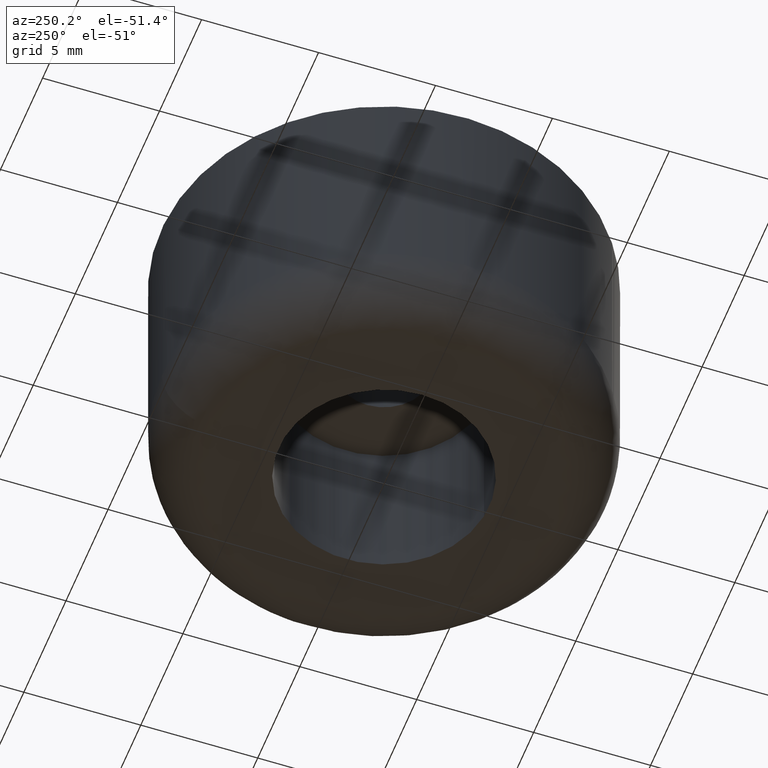
[diagram: clean part render]
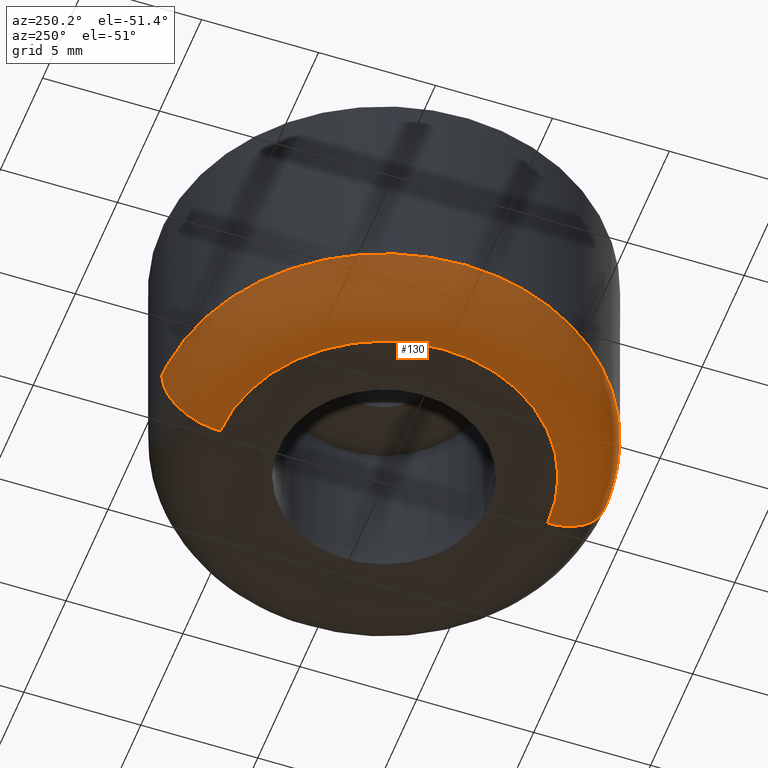
[diagram: same view with one face highlighted and labeled with its STEP entity id]
A machine part, auxiliary view. The second image highlights one B-rep face of the part: STEP entity #130.
In plain terms, the highlighted face is a freeform B-spline surface patch.
Its self-contained STEP definition (entity closure, byte-faithful):
#130=ADVANCED_FACE('',(#319),#318,.T.);
#318=( BOUNDED_SURFACE() B_SPLINE_SURFACE( 2,2,((#434,#435,#436,#437,#438),(#439,#440,#441,#442,#443),(#444,#445,#446,#447,#448),(#449,#450,#451,#452,#453),(#454,#455,#456,#457,#458)), .UNSPECIFIED.,.F.,.F.,.F.) B_SPLINE_SURFACE_WITH_KNOTS((3,2,3),(3,2,3),(0.00000000000E+000,5.00000000000E-001,1.00000000000E+000),(0.00000000000E+000,5.00000000000E-001,1.00000000000E+000), .UNSPECIFIED. ) GEOMETRIC_REPRESENTATION_ITEM() RATIONAL_B_SPLINE_SURFACE(((1.00000000000E+000,7.07106781126E-001,1.00000000000E+000,7.07106781126E-001,1.00000000000E+000),(7.07106781187E-001,4.99999999957E-001,7.07106781187E-001,4.99999999957E-001,7.07106781187E-001),(1.00000000000E+000,7.07106781126E-001,1.00000000000E+000,7.07106781126E-001,1.00000000000E+000),(7.07106781187E-001,4.99999999957E-001,7.07106781187E-001,4.99999999957E-001,7.07106781187E-001),(1.00000000000E+000,7.07106781126E-001,1.00000000000E+000,7.07106781126E-001,1.00000000000E+000))) REPRESENTATION_ITEM('') SURFACE() );
#319=FACE_OUTER_BOUND('',#459,.T.);
#434=CARTESIAN_POINT('',(-5.67829474846E-014,-9.50000000000E+000,2.50000000000E+000));
#435=CARTESIAN_POINT('',(-6.82668475660E-014,-9.50000000000E+000,-4.31779508416E-010));
#436=CARTESIAN_POINT('',(-6.79606959755E-014,-6.99999999957E+000,-1.55786494815E-012));
#437=CARTESIAN_POINT('',(-6.76545443851E-014,-4.49999999914E+000,4.28663502922E-010));
#438=CARTESIAN_POINT('',(-5.61706443038E-014,-4.50000000000E+000,2.50000000086E+000));
#439=CARTESIAN_POINT('',(-9.50000000000E+000,-9.50000000000E+000,2.50000000000E+000));
#440=CARTESIAN_POINT('',(-9.50000000000E+000,-9.50000000000E+000,-4.31735956066E-010));
#441=CARTESIAN_POINT('',(-6.99999999957E+000,-6.99999999957E+000,-1.52559225376E-012));
#442=CARTESIAN_POINT('',(-4.49999999914E+000,-4.49999999914E+000,4.28684355857E-010));
#443=CARTESIAN_POINT('',(-4.50000000000E+000,-4.50000000000E+000,2.50000000086E+000));
#444=CARTESIAN_POINT('',(-9.50000000000E+000,-1.24318421464E-013,2.50000000000E+000));
#445=CARTESIAN_POINT('',(-9.50000000000E+000,1.54407590228E-013,-4.30676675472E-010));
#446=CARTESIAN_POINT('',(-6.99999999957E+000,1.54254519442E-013,-7.45181694128E-013));
#447=CARTESIAN_POINT('',(-4.49999999914E+000,1.54101448655E-013,4.29186029692E-010));
#448=CARTESIAN_POINT('',(-4.50000000000E+000,-1.24624563037E-013,2.50000000086E+000));
#449=CARTESIAN_POINT('',(-9.50000000000E+000,9.50000000000E+000,2.50000000000E+000));
#450=CARTESIAN_POINT('',(-9.50000000000E+000,9.50000000000E+000,-4.29617650535E-010));
#451=CARTESIAN_POINT('',(-6.99999999957E+000,6.99999999957E+000,3.50796501673E-014));
#452=CARTESIAN_POINT('',(-4.49999999914E+000,4.49999999914E+000,4.29687553382E-010));
#453=CARTESIAN_POINT('',(-4.50000000000E+000,4.50000000000E+000,2.50000000086E+000));
#454=CARTESIAN_POINT('',(-5.56196098716E-014,9.50000000000E+000,2.50000000000E+000));
#455=CARTESIAN_POINT('',(-6.71035099529E-014,9.50000000000E+000,-4.29661139670E-010));
#456=CARTESIAN_POINT('',(-6.71034998396E-014,6.99999999957E+000,3.10862446895E-015));
#457=CARTESIAN_POINT('',(-6.71034897263E-014,4.49999999914E+000,4.29666792003E-010));
#458=CARTESIAN_POINT('',(-5.56195896450E-014,4.50000000000E+000,2.50000000086E+000));
#459=EDGE_LOOP('',(#587,#588,#589,#590,#591,#592,#593,#594,#595));
#587=ORIENTED_EDGE('',*,*,#618,.F.);
#588=ORIENTED_EDGE('',*,*,#620,.F.);
#589=ORIENTED_EDGE('',*,*,#658,.F.);
#590=ORIENTED_EDGE('',*,*,#655,.T.);
#591=ORIENTED_EDGE('',*,*,#653,.T.);
#592=ORIENTED_EDGE('',*,*,#652,.T.);
#593=ORIENTED_EDGE('',*,*,#651,.T.);
#594=ORIENTED_EDGE('',*,*,#650,.T.);
#595=ORIENTED_EDGE('',*,*,#659,.T.);
#618=EDGE_CURVE('',#768,#769,#770,.T.);
#620=EDGE_CURVE('',#776,#768,#783,.T.);
#650=EDGE_CURVE('',#986,#979,#987,.T.);
#651=EDGE_CURVE('',#993,#986,#994,.T.);
#652=EDGE_CURVE('',#1000,#993,#1001,.T.);
#653=EDGE_CURVE('',#1007,#1000,#1008,.T.);
#655=EDGE_CURVE('',#1020,#1007,#1021,.T.);
#658=EDGE_CURVE('',#1020,#776,#1040,.T.);
#659=EDGE_CURVE('',#979,#769,#1046,.T.);
#768=VERTEX_POINT('',#1120);
#769=VERTEX_POINT('',#1121);
#770=CIRCLE('',#1125,7.00000000002E+000);
#776=VERTEX_POINT('',#1126);
#783=CIRCLE('',#1134,7.00000000002E+000);
#979=VERTEX_POINT('',#1255);
#986=VERTEX_POINT('',#1260);
#987=CIRCLE('',#1264,9.50000000000E+000);
#993=VERTEX_POINT('',#1265);
#994=CIRCLE('',#1269,9.50000000000E+000);
#1000=VERTEX_POINT('',#1270);
#1001=CIRCLE('',#1274,9.49999999947E+000);
#1007=VERTEX_POINT('',#1275);
#1008=CIRCLE('',#1279,9.50000000001E+000);
#1020=VERTEX_POINT('',#1282);
#1021=CIRCLE('',#1286,9.50000000001E+000);
#1040=(BOUNDED_CURVE() B_SPLINE_CURVE(2,(#1296,#1297,#1298),.UNSPECIFIED.,.F.,.F.) B_SPLINE_CURVE_WITH_KNOTS((3,3),(0.00000000000E+000,5.00000000000E-001),.UNSPECIFIED.) CURVE() GEOMETRIC_REPRESENTATION_ITEM() RATIONAL_B_SPLINE_CURVE((1.00000000000E+000,7.07106781126E-001,1.00000000000E+000)) REPRESENTATION_ITEM('') );
#1046=(BOUNDED_CURVE() B_SPLINE_CURVE(3,(#1299,#1300,#1301,#1302,#1303),.UNSPECIFIED.,.F.,.F.) B_SPLINE_CURVE_WITH_KNOTS((4,1,4),(0.00000000000E+000,2.50000048819E-001,5.00000084777E-001),.UNSPECIFIED.) CURVE() GEOMETRIC_REPRESENTATION_ITEM() RATIONAL_B_SPLINE_CURVE((1.00000000000E+000,1.00000000000E+000,1.00000000000E+000,1.00000000000E+000,1.00000000000E+000)) REPRESENTATION_ITEM('') );
#1120=CARTESIAN_POINT('',(-7.00000000005E+000,5.87093758644E-017,5.05916270362E-016));
#1121=CARTESIAN_POINT('',(7.26478199446E-004,6.99999996235E+000,2.52931882527E-016));
#1122=CARTESIAN_POINT('',(-2.45959815557E-011,2.44420178541E-011,2.52958135181E-016));
#1123=DIRECTION('',(-3.61368764543E-017,6.48436996588E-033,-1.00000000000E+000));
#1124=DIRECTION('',(-1.00000000000E+000,-3.49114189939E-012,3.61368764543E-017));
#1125=AXIS2_PLACEMENT_3D('',#1122,#1123,#1124);
#1126=CARTESIAN_POINT('',(-1.21954330452E-013,-7.00000000000E+000,2.52958135180E-016));
#1131=CARTESIAN_POINT('',(-2.45959815557E-011,2.44420178541E-011,2.52958135181E-016));
#1132=DIRECTION('',(-3.61368764543E-017,6.48436996588E-033,-1.00000000000E+000));
#1133=DIRECTION('',(-1.00000000000E+000,-3.49114189939E-012,3.61368764543E-017));
#1134=AXIS2_PLACEMENT_3D('',#1131,#1132,#1133);
#1255=CARTESIAN_POINT('',(5.23065606286E-006,9.50000000000E+000,2.50000000003E+000));
#1260=CARTESIAN_POINT('',(-6.62465889968E-001,9.47687390148E+000,2.49999999997E+000));
#1261=CARTESIAN_POINT('',(7.10542735760E-015,2.66453525910E-015,2.49999999995E+000));
#1262=DIRECTION('',(9.57293467828E-011,8.64344668673E-012,-1.00000000000E+000));
#1263=DIRECTION('',(6.97332515756E-002,-9.97565673840E-001,-1.94688709598E-012));
#1264=AXIS2_PLACEMENT_3D('',#1261,#1262,#1263);
#1265=CARTESIAN_POINT('',(-9.50000000000E+000,0.00000000000E+000,2.50000000000E+000));
#1266=CARTESIAN_POINT('',(6.02184968557E-013,-5.64881474929E-013,2.49999999997E+000));
#1267=DIRECTION('',(-3.60633160761E-012,1.65272890385E-017,-1.00000000000E+000));
#1268=DIRECTION('',(1.00000000000E+000,-5.94612078873E-014,-3.60633160761E-012));
#1269=AXIS2_PLACEMENT_3D('',#1266,#1267,#1268);
#1270=CARTESIAN_POINT('',(-9.49924991994E+000,-1.19377378897E-001,2.49999999997E+000));
#1271=CARTESIAN_POINT('',(-5.25266941054E-010,-3.09630793227E-012,2.49999959731E+000));
#1272=DIRECTION('',(-4.23889162677E-008,-3.55077848317E-014,-1.00000000000E+000));
#1273=DIRECTION('',(9.99921044204E-001,1.25660398843E-002,-4.23855698633E-008));
#1274=AXIS2_PLACEMENT_3D('',#1271,#1272,#1273);
#1275=CARTESIAN_POINT('',(-5.42323242363E+000,-7.79990705581E+000,2.49999999999E+000));
#1276=CARTESIAN_POINT('',(7.26529947315E-012,4.59454696511E-012,2.49999999997E+000));
#1277=DIRECTION('',(9.30052199100E-016,-3.38918239541E-012,-1.00000000000E+000));
#1278=DIRECTION('',(5.70840059522E-001,8.21061280566E-001,-2.78219552659E-012));
#1279=AXIS2_PLACEMENT_3D('',#1276,#1277,#1278);
#1282=CARTESIAN_POINT('',(-5.93234042732E-014,-9.50000000000E+000,2.50000000000E+000));
#1283=CARTESIAN_POINT('',(7.26529947315E-012,4.59454696511E-012,2.49999999997E+000));
#1284=DIRECTION('',(9.30052199100E-016,-3.38918239541E-012,-1.00000000000E+000));
#1285=DIRECTION('',(5.70840059522E-001,8.21061280566E-001,-2.78219552659E-012));
#1286=AXIS2_PLACEMENT_3D('',#1283,#1284,#1285);
#1296=CARTESIAN_POINT('',(-5.67829474846E-014,-9.50000000000E+000,2.50000000000E+000));
#1297=CARTESIAN_POINT('',(-6.82668475660E-014,-9.50000000000E+000,-4.31779508416E-010));
#1298=CARTESIAN_POINT('',(-6.79606959755E-014,-6.99999999957E+000,-1.55786494815E-012));
#1299=CARTESIAN_POINT('',(-5.32907051820E-014,9.50000000000E+000,2.50000000000E+000));
#1300=CARTESIAN_POINT('',(-5.64077481031E-014,9.50556015244E+000,1.85137378630E+000));
#1301=CARTESIAN_POINT('',(-6.29919942363E-014,8.95844059103E+000,5.41558904963E-001));
#1302=CARTESIAN_POINT('',(-6.63034812496E-014,7.64862557906E+000,-5.56030639107E-003));
#1303=CARTESIAN_POINT('',(-6.66133814676E-014,6.99999940011E+000,7.49344288395E-014));